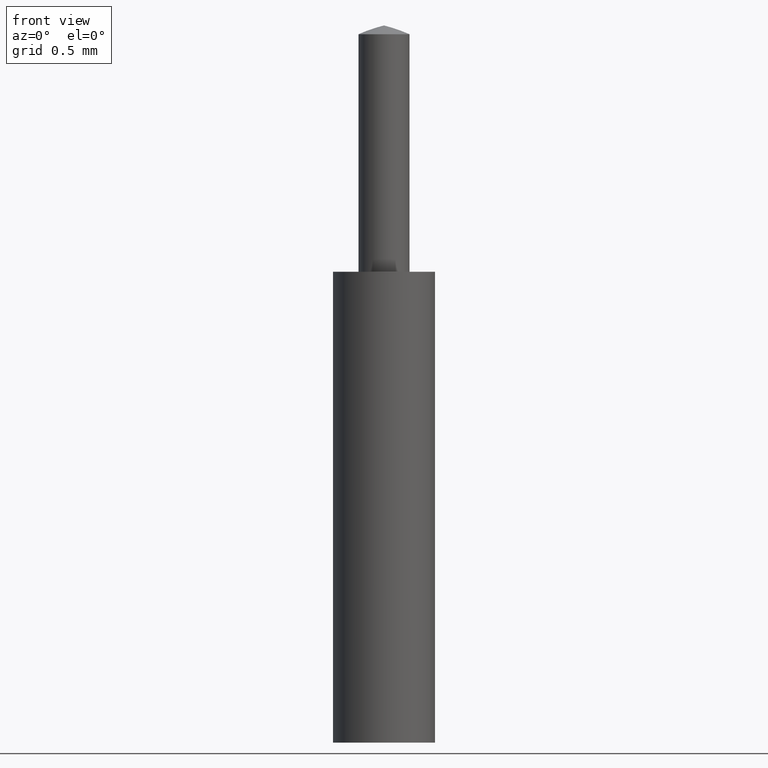
[diagram: clean part render]
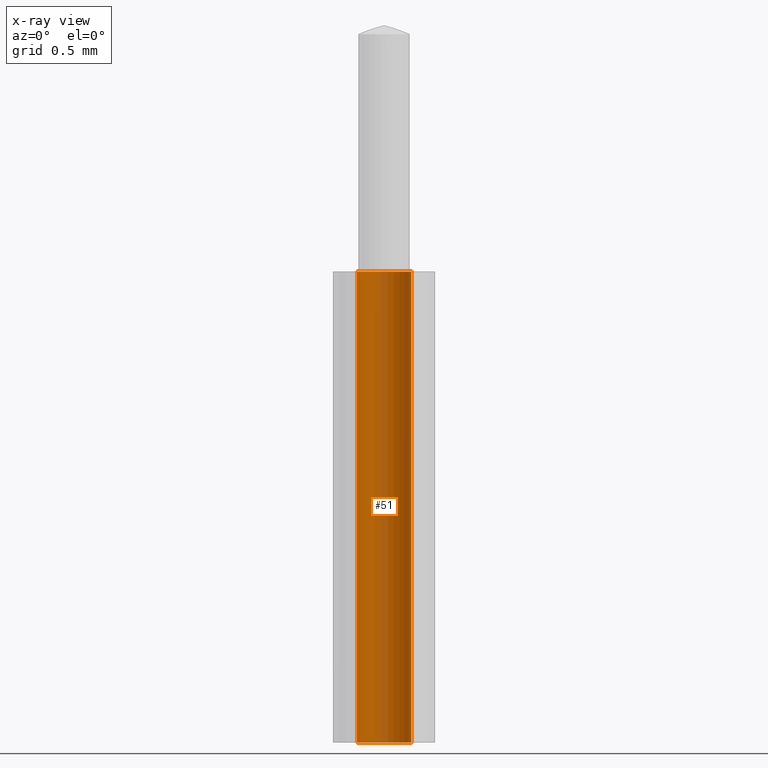
[diagram: x-ray — body ghosted, one internal face saturated and labeled with its STEP entity id]
A machine part, front view, then the same camera in x-ray: the body is ghosted and one INTERNAL B-rep face — a face not visible from any outside direction — is saturated and labeled: STEP entity #51.
In plain terms, the highlighted cylindrical surface (edge-blend (fillet) strip) has radius 0.1358 mm, axis along (-0, -0, -1).
Its self-contained STEP definition (entity closure, byte-faithful):
#8 = EDGE_CURVE ( 'NONE', #364, #266, #278, .T. ) ;
#10 = EDGE_CURVE ( 'NONE', #340, #330, #354, .T. ) ;
#11 = EDGE_CURVE ( 'NONE', #330, #266, #307, .T. ) ;
#13 = EDGE_CURVE ( 'NONE', #340, #364, #305, .T. ) ;
#27 = AXIS2_PLACEMENT_3D ( 'NONE', #260, #247, #258 ) ;
#29 = AXIS2_PLACEMENT_3D ( 'NONE', #239, #242, #241 ) ;
#38 = AXIS2_PLACEMENT_3D ( 'NONE', #161, #163, #150 ) ;
#51 = ADVANCED_FACE ( 'NONE', ( #332 ), #93, .F. ) ;
#93 = CYLINDRICAL_SURFACE ( 'NONE', #38, 0.005345904096558285100 ) ;
#150 = DIRECTION ( 'NONE',  ( -1.000000000000000000, 0.0000000000000000000, 0.0000000000000000000 ) ) ;
#152 = CARTESIAN_POINT ( 'NONE',  ( 0.005345904096558285100, 6.546844340398827900E-019, 0.0000000000000000000 ) ) ;
#161 = CARTESIAN_POINT ( 'NONE',  ( 0.0000000000000000000, 0.0000000000000000000, 0.0000000000000000000 ) ) ;
#163 = DIRECTION ( 'NONE',  ( -0.0000000000000000000, -0.0000000000000000000, -1.000000000000000000 ) ) ;
#164 = DIRECTION ( 'NONE',  ( -0.0000000000000000000, -0.0000000000000000000, -1.000000000000000000 ) ) ;
#190 = CARTESIAN_POINT ( 'NONE',  ( -0.005345904096558290300, 0.0000000000000000000, 0.0000000000000000000 ) ) ;
#191 = CARTESIAN_POINT ( 'NONE',  ( 0.005345904096558289400, 6.546844340398833700E-019, 0.0000000000000000000 ) ) ;
#202 = CARTESIAN_POINT ( 'NONE',  ( -0.005345904096558279900, 0.0000000000000000000, 0.09224620568251602800 ) ) ;
#204 = CARTESIAN_POINT ( 'NONE',  ( 0.005345904096558279900, 6.546844340398825000E-019, 0.09224620568251602800 ) ) ;
#228 = CARTESIAN_POINT ( 'NONE',  ( -0.005345904096558285100, 0.0000000000000000000, 0.0000000000000000000 ) ) ;
#239 = CARTESIAN_POINT ( 'NONE',  ( 0.0000000000000000000, 0.0000000000000000000, 0.09224620568251602800 ) ) ;
#241 = DIRECTION ( 'NONE',  ( -1.000000000000000000, 0.0000000000000000000, 0.0000000000000000000 ) ) ;
#242 = DIRECTION ( 'NONE',  ( -0.0000000000000000000, -0.0000000000000000000, -1.000000000000000000 ) ) ;
#247 = DIRECTION ( 'NONE',  ( -0.0000000000000000000, -0.0000000000000000000, -1.000000000000000000 ) ) ;
#258 = DIRECTION ( 'NONE',  ( -1.000000000000000000, 0.0000000000000000000, 0.0000000000000000000 ) ) ;
#260 = CARTESIAN_POINT ( 'NONE',  ( 0.0000000000000000000, 0.0000000000000000000, 0.0000000000000000000 ) ) ;
#263 = DIRECTION ( 'NONE',  ( -0.0000000000000000000, -0.0000000000000000000, -1.000000000000000000 ) ) ;
#266 = VERTEX_POINT ( 'NONE', #191 ) ;
#278 = LINE ( 'NONE', #152, #344 ) ;
#282 = EDGE_LOOP ( 'NONE', ( #347, #297, #357, #311 ) ) ;
#297 = ORIENTED_EDGE ( 'NONE', *, *, #13, .F. ) ;
#303 = VECTOR ( 'NONE', #164, 39.37007874015748100 ) ;
#305 = CIRCLE ( 'NONE', #29, 0.005345904096558279900 ) ;
#307 = CIRCLE ( 'NONE', #27, 0.005345904096558290300 ) ;
#311 = ORIENTED_EDGE ( 'NONE', *, *, #11, .T. ) ;
#330 = VERTEX_POINT ( 'NONE', #190 ) ;
#332 = FACE_OUTER_BOUND ( 'NONE', #282, .T. ) ;
#340 = VERTEX_POINT ( 'NONE', #202 ) ;
#344 = VECTOR ( 'NONE', #263, 39.37007874015748100 ) ;
#347 = ORIENTED_EDGE ( 'NONE', *, *, #8, .F. ) ;
#354 = LINE ( 'NONE', #228, #303 ) ;
#357 = ORIENTED_EDGE ( 'NONE', *, *, #10, .T. ) ;
#364 = VERTEX_POINT ( 'NONE', #204 ) ;